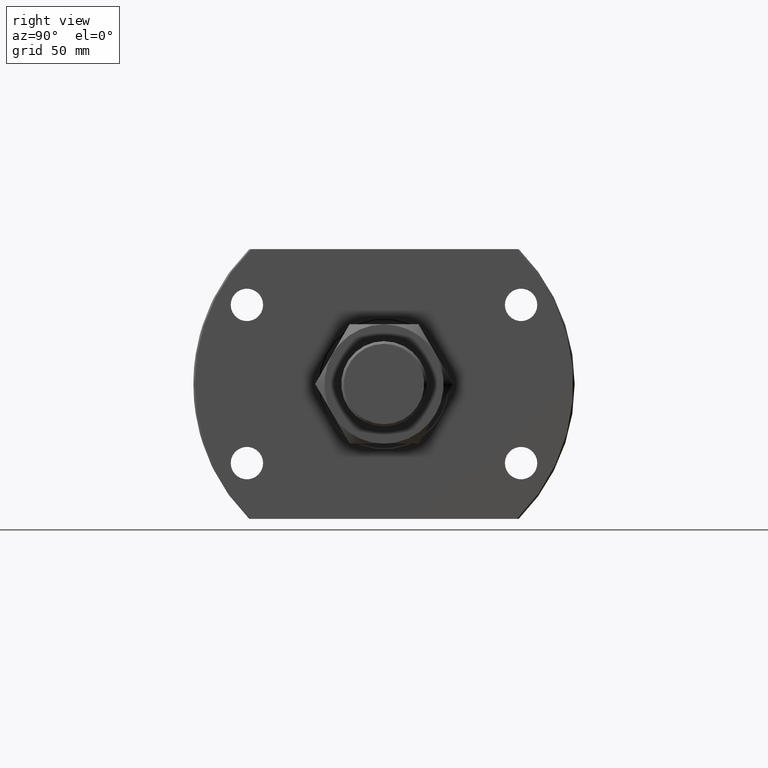
[diagram: clean part render]
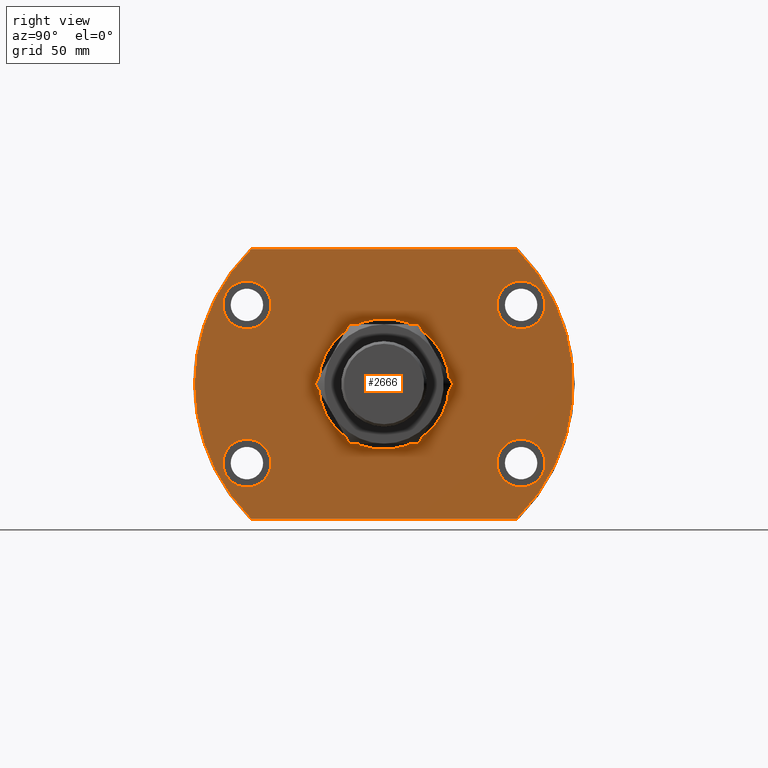
[diagram: same view with one face highlighted and labeled with its STEP entity id]
A machine part, right view. The second image highlights one B-rep face of the part: STEP entity #2666.
In plain terms, the highlighted planar face has unit normal (-1, -0, 0).
Its self-contained STEP definition (entity closure, byte-faithful):
#12 = EDGE_CURVE ( 'NONE', #181, #257, #825, .T. ) ;
#18 = EDGE_CURVE ( 'NONE', #2881, #2016, #3587, .T. ) ;
#86 = AXIS2_PLACEMENT_3D ( 'NONE', #4655, #2382, #1987 ) ;
#90 = ORIENTED_EDGE ( 'NONE', *, *, #2581, .T. ) ;
#158 = ORIENTED_EDGE ( 'NONE', *, *, #2796, .F. ) ;
#181 = VERTEX_POINT ( 'NONE', #1993 ) ;
#229 = DIRECTION ( 'NONE',  ( 1.000000000000000000, -2.888547605177540648E-14, 0.000000000000000000 ) ) ;
#232 = CIRCLE ( 'NONE', #849, 9.250000000000001776 ) ;
#234 = CIRCLE ( 'NONE', #2749, 9.250000000000001776 ) ;
#241 = DIRECTION ( 'NONE',  ( 0.000000000000000000, -1.000000000000000000, 0.000000000000000000 ) ) ;
#257 = VERTEX_POINT ( 'NONE', #4013 ) ;
#283 = AXIS2_PLACEMENT_3D ( 'NONE', #2464, #836, #2032 ) ;
#311 = VERTEX_POINT ( 'NONE', #1026 ) ;
#410 = CARTESIAN_POINT ( 'NONE',  ( 44.49999999999998579, 51.23475382979800941, -52.00000000000000000 ) ) ;
#441 = AXIS2_PLACEMENT_3D ( 'NONE', #4415, #3958, #241 ) ;
#524 = EDGE_LOOP ( 'NONE', ( #158, #1061 ) ) ;
#578 = EDGE_CURVE ( 'NONE', #1140, #1672, #1368, .T. ) ;
#584 = VERTEX_POINT ( 'NONE', #4695 ) ;
#699 = AXIS2_PLACEMENT_3D ( 'NONE', #4065, #3682, #2162 ) ;
#741 = FACE_BOUND ( 'NONE', #524, .T. ) ;
#767 = FACE_BOUND ( 'NONE', #3894, .T. ) ;
#783 = EDGE_CURVE ( 'NONE', #584, #1962, #2057, .T. ) ;
#789 = DIRECTION ( 'NONE',  ( 2.850572630794320387E-14, 1.000000000000000000, 0.000000000000000000 ) ) ;
#825 = CIRCLE ( 'NONE', #283, 9.250000000000001776 ) ;
#835 = CIRCLE ( 'NONE', #1860, 9.250000000000001776 ) ;
#836 = DIRECTION ( 'NONE',  ( 1.000000000000000000, -2.888547605177540648E-14, 0.000000000000000000 ) ) ;
#849 = AXIS2_PLACEMENT_3D ( 'NONE', #2101, #3588, #3938 ) ;
#850 = EDGE_LOOP ( 'NONE', ( #4417, #3919, #1593, #4726, #2785 ) ) ;
#881 = VERTEX_POINT ( 'NONE', #1967 ) ;
#913 = VECTOR ( 'NONE', #963, 1000.000000000000000 ) ;
#942 = CARTESIAN_POINT ( 'NONE',  ( 44.49999999999999289, -1.284477419691526336E-12, 0.000000000000000000 ) ) ;
#957 = ORIENTED_EDGE ( 'NONE', *, *, #12, .F. ) ;
#963 = DIRECTION ( 'NONE',  ( -5.504030557965630938E-17, 1.000000000000000000, -0.000000000000000000 ) ) ;
#1006 = EDGE_LOOP ( 'NONE', ( #4501, #957 ) ) ;
#1022 = AXIS2_PLACEMENT_3D ( 'NONE', #1937, #2337, #3457 ) ;
#1026 = CARTESIAN_POINT ( 'NONE',  ( 44.50000000000125056, 43.59999999999871534, 30.50000000000000000 ) ) ;
#1055 = CARTESIAN_POINT ( 'NONE',  ( 44.49999999999846523, -52.85000000000128750, 30.50000000000000000 ) ) ;
#1061 = ORIENTED_EDGE ( 'NONE', *, *, #2155, .F. ) ;
#1140 = VERTEX_POINT ( 'NONE', #2540 ) ;
#1179 = DIRECTION ( 'NONE',  ( -9.505334114941407284E-17, 1.000000000000000000, 0.000000000000000000 ) ) ;
#1218 = DIRECTION ( 'NONE',  ( 2.925587700025750053E-14, 1.000000000000000000, 0.000000000000000000 ) ) ;
#1222 = CARTESIAN_POINT ( 'NONE',  ( 44.50000000000124345, 43.59999999999871534, -30.50000000000000000 ) ) ;
#1334 = DIRECTION ( 'NONE',  ( 1.000000000000000000, -2.888547605177540648E-14, 0.000000000000000000 ) ) ;
#1347 = EDGE_CURVE ( 'NONE', #2688, #2467, #835, .T. ) ;
#1368 = LINE ( 'NONE', #4298, #4883 ) ;
#1381 = AXIS2_PLACEMENT_3D ( 'NONE', #3204, #1334, #2845 ) ;
#1385 = ORIENTED_EDGE ( 'NONE', *, *, #18, .F. ) ;
#1560 = CARTESIAN_POINT ( 'NONE',  ( 44.49999999999819522, -62.10000000000128750, 30.50000000000000000 ) ) ;
#1563 = CARTESIAN_POINT ( 'NONE',  ( 44.49999999999999289, 2.449293598294705330E-15, 0.000000000000000000 ) ) ;
#1593 = ORIENTED_EDGE ( 'NONE', *, *, #4874, .T. ) ;
#1672 = VERTEX_POINT ( 'NONE', #4660 ) ;
#1718 = CIRCLE ( 'NONE', #4475, 73.00000000000001421 ) ;
#1757 = DIRECTION ( 'NONE',  ( 0.000000000000000000, -1.000000000000000000, 0.000000000000000000 ) ) ;
#1858 = EDGE_CURVE ( 'NONE', #1140, #2668, #1718, .T. ) ;
#1860 = AXIS2_PLACEMENT_3D ( 'NONE', #1055, #3780, #3028 ) ;
#1861 = CARTESIAN_POINT ( 'NONE',  ( 44.49999999999999289, 25.24999999999726441, 0.000000000000000000 ) ) ;
#1871 = CIRCLE ( 'NONE', #1022, 73.00000000000001421 ) ;
#1937 = CARTESIAN_POINT ( 'NONE',  ( 44.49999999999999289, 2.449293598294705330E-15, 0.000000000000000000 ) ) ;
#1944 = AXIS2_PLACEMENT_3D ( 'NONE', #942, #4383, #1757 ) ;
#1953 = CIRCLE ( 'NONE', #4187, 73.00000000000001421 ) ;
#1962 = VERTEX_POINT ( 'NONE', #410 ) ;
#1967 = CARTESIAN_POINT ( 'NONE',  ( 44.49999999999999289, -25.25000000000129674, 3.092233167847068013E-15 ) ) ;
#1987 = DIRECTION ( 'NONE',  ( 2.925587700025750053E-14, 1.000000000000000000, 0.000000000000000000 ) ) ;
#1993 = CARTESIAN_POINT ( 'NONE',  ( 44.49999999999819522, -62.10000000000128750, -30.50000000000000000 ) ) ;
#2016 = VERTEX_POINT ( 'NONE', #1222 ) ;
#2025 = DIRECTION ( 'NONE',  ( -0.000000000000000000, 1.000000000000000000, 0.000000000000000000 ) ) ;
#2032 = DIRECTION ( 'NONE',  ( 2.925587700025750053E-14, 1.000000000000000000, 0.000000000000000000 ) ) ;
#2051 = ORIENTED_EDGE ( 'NONE', *, *, #3672, .F. ) ;
#2057 = LINE ( 'NONE', #4730, #913 ) ;
#2101 = CARTESIAN_POINT ( 'NONE',  ( 44.50000000000152056, 52.84999999999871534, 30.50000000000000000 ) ) ;
#2155 = EDGE_CURVE ( 'NONE', #311, #3419, #232, .T. ) ;
#2162 = DIRECTION ( 'NONE',  ( 5.504030557965630938E-17, -1.000000000000000000, 0.000000000000000000 ) ) ;
#2189 = FACE_BOUND ( 'NONE', #4444, .T. ) ;
#2246 = AXIS2_PLACEMENT_3D ( 'NONE', #2667, #2287, #789 ) ;
#2261 = FACE_OUTER_BOUND ( 'NONE', #850, .T. ) ;
#2274 = DIRECTION ( 'NONE',  ( -9.505334114941407284E-17, 1.000000000000000000, 0.000000000000000000 ) ) ;
#2287 = DIRECTION ( 'NONE',  ( 1.000000000000000000, -2.886466111666351885E-14, 0.000000000000000000 ) ) ;
#2337 = DIRECTION ( 'NONE',  ( 1.000000000000000000, 5.504030557965630938E-17, -0.000000000000000000 ) ) ;
#2382 = DIRECTION ( 'NONE',  ( 1.000000000000000000, -2.888547605177540648E-14, 0.000000000000000000 ) ) ;
#2407 = CIRCLE ( 'NONE', #2579, 9.250000000000001776 ) ;
#2464 = CARTESIAN_POINT ( 'NONE',  ( 44.49999999999846523, -52.85000000000128750, -30.50000000000000000 ) ) ;
#2467 = VERTEX_POINT ( 'NONE', #1560 ) ;
#2540 = CARTESIAN_POINT ( 'NONE',  ( 44.49999999999999289, -51.23475382979801651, 52.00000000000000000 ) ) ;
#2568 = CARTESIAN_POINT ( 'NONE',  ( 44.50000000000000000, -73.00000000000001421, 0.000000000000000000 ) ) ;
#2579 = AXIS2_PLACEMENT_3D ( 'NONE', #3597, #229, #3996 ) ;
#2581 = EDGE_CURVE ( 'NONE', #881, #3139, #4473, .T. ) ;
#2666 = ADVANCED_FACE ( 'NONE', ( #2189, #741, #4093, #3333, #767, #2261 ), #3349, .F. ) ;
#2667 = CARTESIAN_POINT ( 'NONE',  ( 44.50000000000152056, 52.84999999999871534, 30.50000000000000000 ) ) ;
#2668 = VERTEX_POINT ( 'NONE', #2568 ) ;
#2688 = VERTEX_POINT ( 'NONE', #2995 ) ;
#2749 = AXIS2_PLACEMENT_3D ( 'NONE', #4274, #4666, #1218 ) ;
#2785 = ORIENTED_EDGE ( 'NONE', *, *, #4115, .T. ) ;
#2796 = EDGE_CURVE ( 'NONE', #3419, #311, #2978, .T. ) ;
#2845 = DIRECTION ( 'NONE',  ( 2.925587700025750053E-14, 1.000000000000000000, 0.000000000000000000 ) ) ;
#2852 = ORIENTED_EDGE ( 'NONE', *, *, #3047, .F. ) ;
#2859 = CARTESIAN_POINT ( 'NONE',  ( 44.50000000000178346, 62.09999999999871534, 30.50000000000000000 ) ) ;
#2881 = VERTEX_POINT ( 'NONE', #3159 ) ;
#2978 = CIRCLE ( 'NONE', #2246, 9.250000000000001776 ) ;
#2995 = CARTESIAN_POINT ( 'NONE',  ( 44.49999999999873523, -43.60000000000128040, 30.50000000000000000 ) ) ;
#3028 = DIRECTION ( 'NONE',  ( 2.925587700025750053E-14, 1.000000000000000000, 0.000000000000000000 ) ) ;
#3047 = EDGE_CURVE ( 'NONE', #2467, #2688, #2407, .T. ) ;
#3080 = DIRECTION ( 'NONE',  ( 1.000000000000000000, 5.504030557965630938E-17, -0.000000000000000000 ) ) ;
#3139 = VERTEX_POINT ( 'NONE', #1861 ) ;
#3159 = CARTESIAN_POINT ( 'NONE',  ( 44.50000000000179057, 62.09999999999871534, -30.50000000000000000 ) ) ;
#3177 = EDGE_LOOP ( 'NONE', ( #3646, #2852 ) ) ;
#3204 = CARTESIAN_POINT ( 'NONE',  ( 44.50000000000152056, 52.84999999999871534, -30.50000000000000000 ) ) ;
#3333 = FACE_BOUND ( 'NONE', #1006, .T. ) ;
#3349 = PLANE ( 'NONE',  #699 ) ;
#3419 = VERTEX_POINT ( 'NONE', #2859 ) ;
#3457 = DIRECTION ( 'NONE',  ( -9.505334114941407284E-17, 1.000000000000000000, 0.000000000000000000 ) ) ;
#3563 = ORIENTED_EDGE ( 'NONE', *, *, #4209, .T. ) ;
#3587 = CIRCLE ( 'NONE', #1381, 9.250000000000001776 ) ;
#3588 = DIRECTION ( 'NONE',  ( 1.000000000000000000, -2.886466111666351885E-14, 0.000000000000000000 ) ) ;
#3597 = CARTESIAN_POINT ( 'NONE',  ( 44.49999999999846523, -52.85000000000128750, 30.50000000000000000 ) ) ;
#3646 = ORIENTED_EDGE ( 'NONE', *, *, #1347, .F. ) ;
#3672 = EDGE_CURVE ( 'NONE', #2016, #2881, #234, .T. ) ;
#3682 = DIRECTION ( 'NONE',  ( -1.000000000000000000, -5.504030557965630938E-17, 0.000000000000000000 ) ) ;
#3692 = CIRCLE ( 'NONE', #86, 9.250000000000001776 ) ;
#3780 = DIRECTION ( 'NONE',  ( 1.000000000000000000, -2.888547605177540648E-14, 0.000000000000000000 ) ) ;
#3894 = EDGE_LOOP ( 'NONE', ( #1385, #2051 ) ) ;
#3919 = ORIENTED_EDGE ( 'NONE', *, *, #1858, .T. ) ;
#3938 = DIRECTION ( 'NONE',  ( 2.850572630794320387E-14, 1.000000000000000000, 0.000000000000000000 ) ) ;
#3958 = DIRECTION ( 'NONE',  ( -1.000000000000000000, -5.504030557965630938E-17, 0.000000000000000000 ) ) ;
#3996 = DIRECTION ( 'NONE',  ( 2.925587700025750053E-14, 1.000000000000000000, 0.000000000000000000 ) ) ;
#4013 = CARTESIAN_POINT ( 'NONE',  ( 44.49999999999873523, -43.60000000000128040, -30.50000000000000000 ) ) ;
#4065 = CARTESIAN_POINT ( 'NONE',  ( 44.50000000000000000, -73.00000000000001421, 0.000000000000000000 ) ) ;
#4081 = EDGE_CURVE ( 'NONE', #257, #181, #3692, .T. ) ;
#4093 = FACE_BOUND ( 'NONE', #3177, .T. ) ;
#4115 = EDGE_CURVE ( 'NONE', #1962, #1672, #1871, .T. ) ;
#4128 = CARTESIAN_POINT ( 'NONE',  ( 44.49999999999999289, 2.449293598294705330E-15, 0.000000000000000000 ) ) ;
#4149 = DIRECTION ( 'NONE',  ( 1.000000000000000000, 5.504030557965630938E-17, -0.000000000000000000 ) ) ;
#4187 = AXIS2_PLACEMENT_3D ( 'NONE', #1563, #3080, #2274 ) ;
#4209 = EDGE_CURVE ( 'NONE', #3139, #881, #4830, .T. ) ;
#4274 = CARTESIAN_POINT ( 'NONE',  ( 44.50000000000152056, 52.84999999999871534, -30.50000000000000000 ) ) ;
#4298 = CARTESIAN_POINT ( 'NONE',  ( 44.49999999999999289, 51.94468211472779728, 52.00000000000000000 ) ) ;
#4383 = DIRECTION ( 'NONE',  ( -1.000000000000000000, -5.504030557965630938E-17, 0.000000000000000000 ) ) ;
#4415 = CARTESIAN_POINT ( 'NONE',  ( 44.49999999999999289, -1.284477419691526336E-12, 0.000000000000000000 ) ) ;
#4417 = ORIENTED_EDGE ( 'NONE', *, *, #578, .F. ) ;
#4444 = EDGE_LOOP ( 'NONE', ( #3563, #90 ) ) ;
#4473 = CIRCLE ( 'NONE', #441, 25.24999999999855049 ) ;
#4475 = AXIS2_PLACEMENT_3D ( 'NONE', #4128, #4149, #1179 ) ;
#4501 = ORIENTED_EDGE ( 'NONE', *, *, #4081, .F. ) ;
#4655 = CARTESIAN_POINT ( 'NONE',  ( 44.49999999999846523, -52.85000000000128750, -30.50000000000000000 ) ) ;
#4660 = CARTESIAN_POINT ( 'NONE',  ( 44.49999999999998579, 51.23475382979800230, 52.00000000000000000 ) ) ;
#4666 = DIRECTION ( 'NONE',  ( 1.000000000000000000, -2.888547605177540648E-14, 0.000000000000000000 ) ) ;
#4695 = CARTESIAN_POINT ( 'NONE',  ( 44.49999999999999289, -51.23475382979800230, -52.00000000000000000 ) ) ;
#4726 = ORIENTED_EDGE ( 'NONE', *, *, #783, .T. ) ;
#4730 = CARTESIAN_POINT ( 'NONE',  ( 44.50000000000000000, -73.00000000000001421, -52.00000000000000000 ) ) ;
#4830 = CIRCLE ( 'NONE', #1944, 25.24999999999855049 ) ;
#4874 = EDGE_CURVE ( 'NONE', #2668, #584, #1953, .T. ) ;
#4883 = VECTOR ( 'NONE', #2025, 1000.000000000000000 ) ;